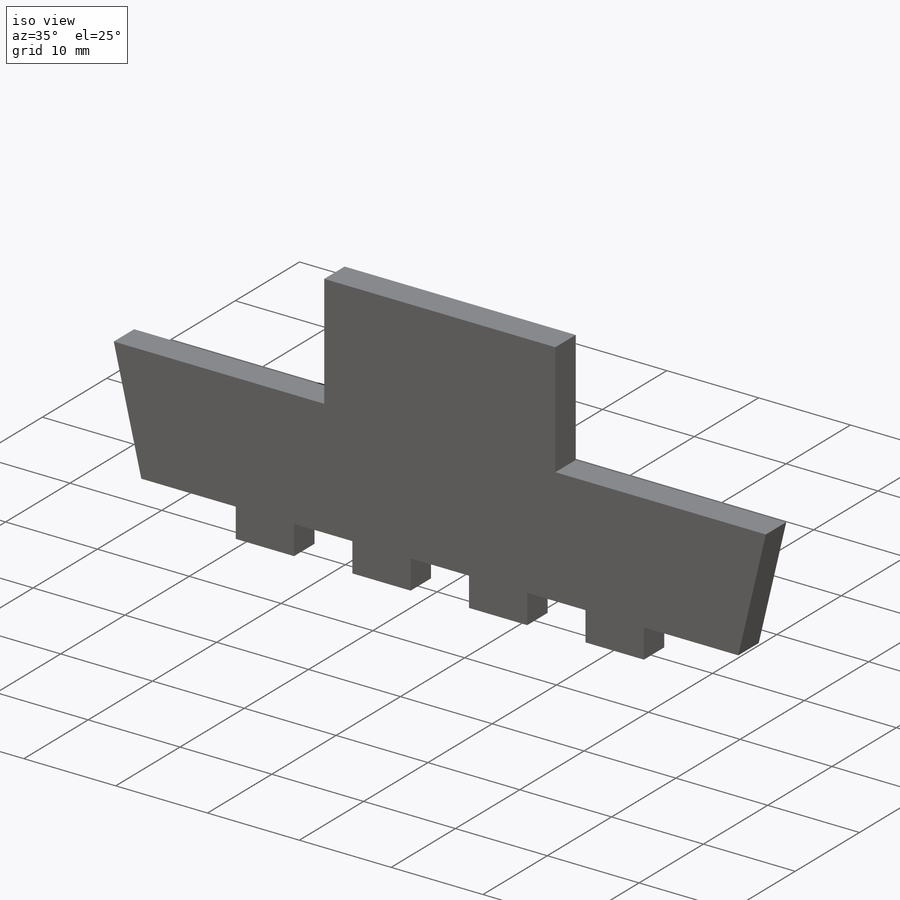
[diagram: iso view]
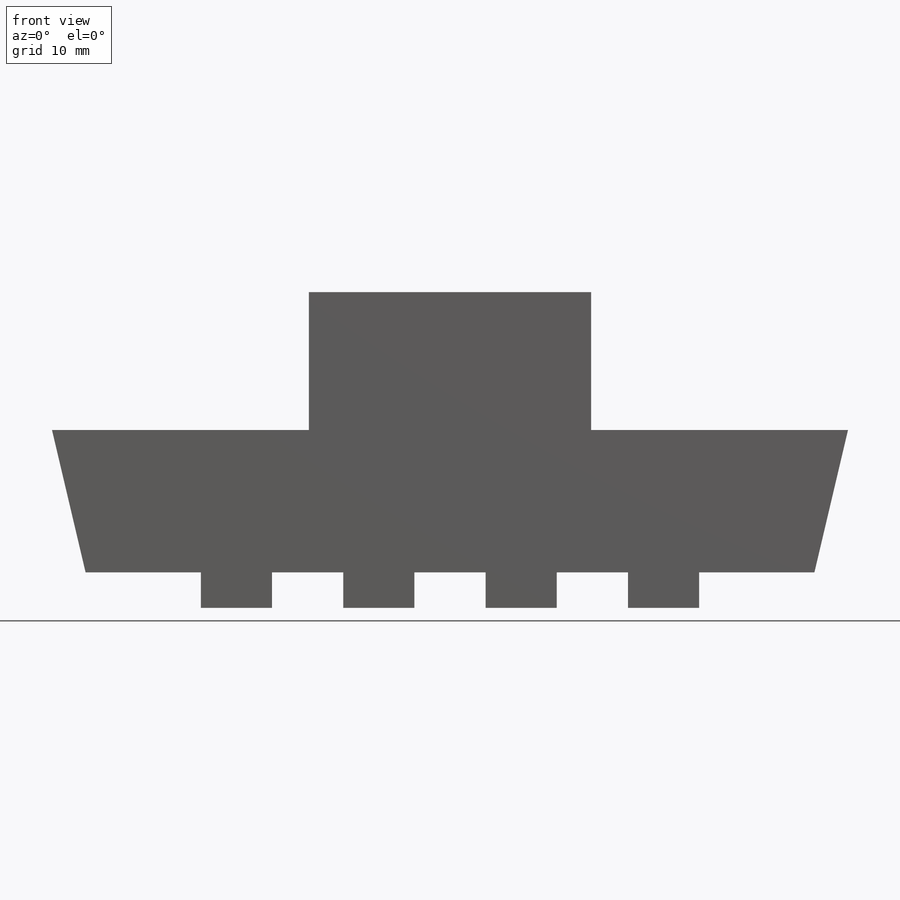
[diagram: front view]
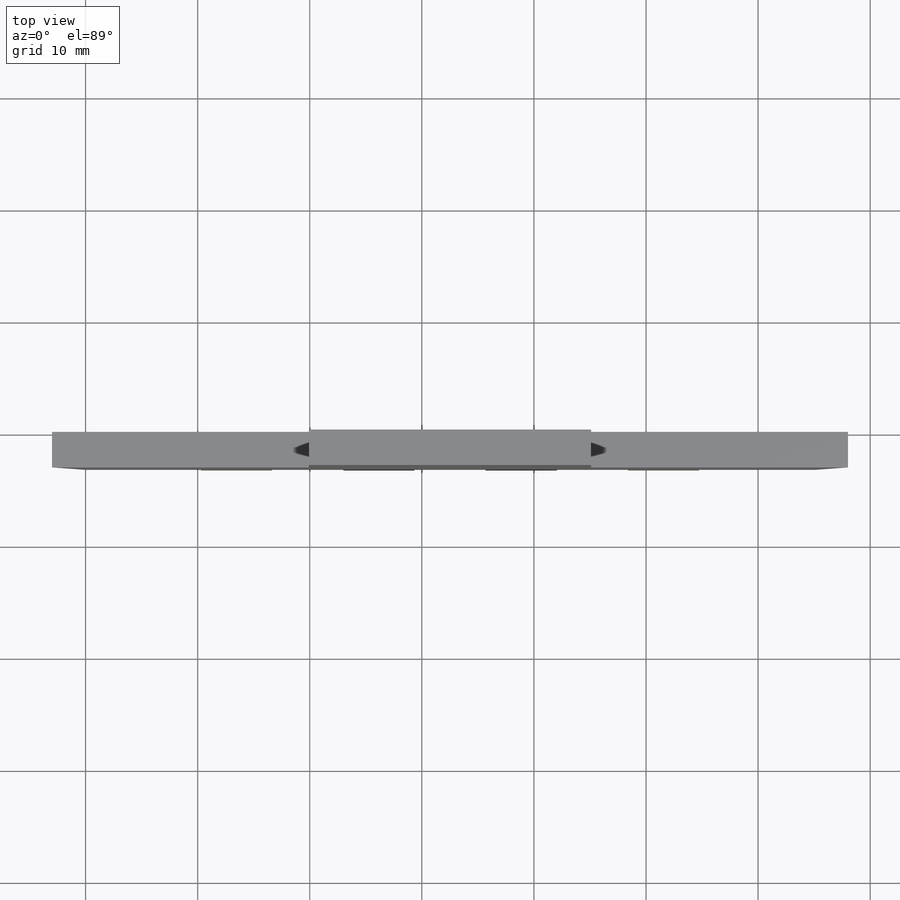
[diagram: top view]
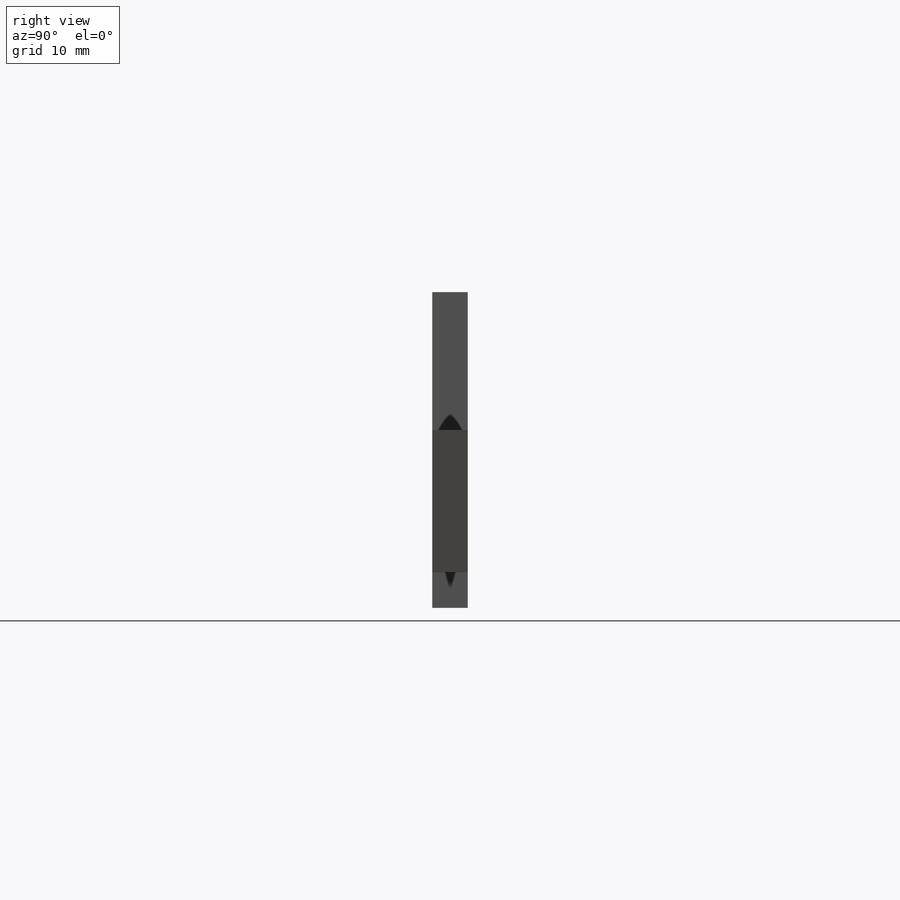
[diagram: right view]
SOLIDWORKS PART (.sldprt)
format: sldprt  version: not decoded by parser v0  size: 308,736 bytes
history: native  units: mm
features: sketch x6, cut_extrude x3, extrude x2, material x1 (+12 scaffold rows collapsed)
feature tree (24):
  scaffold x12  (default folders/planes/origin — collapsed)
  material  "Material <not specified>"
  sketch  "Sketch1"  dims[c1.D1=65.024mm c1.D2=72.0mm c1.D3=38.1mm c1.D4=12.7mm c2.D3=6.35mm c2.D5=6.35mm c2.D6=6.35mm c2.D7=3.175mm c2.D8=3.175mm c2.D9=3.175mm c2.D10=2.9972mm]
  extrude  "Boss-Extrude1"  Depth=3.175mm
  sketch  "Sketch2"
  cut_extrude  "Cut-Extrude2"  Depth=10mm
  sketch  "Sketch3"  dims[c1.D1=25.1714mm c1.D2=23.8506mm c1.D3=0.0mm c1.D4=0.0mm c1.D5=19.9263mm c2.D2=25.0mm c2.D5=33.0mm]
  extrude  "Boss-Extrude2"  Depth=3.175mm
  sketch  "Sketch4"  dims[D1=33.0mm]
  sketch  "Sketch6"
  cut_extrude  "Cut-Extrude3"  Depth=3.175mm
  sketch  "Sketch8"
  cut_extrude  "Cut-Extrude4"  Depth=3.175mm
decode coverage: 8 of 11 modeling features carry decoded parameters
note: suppression state not decoded; provenance and decode notes live in map.json
